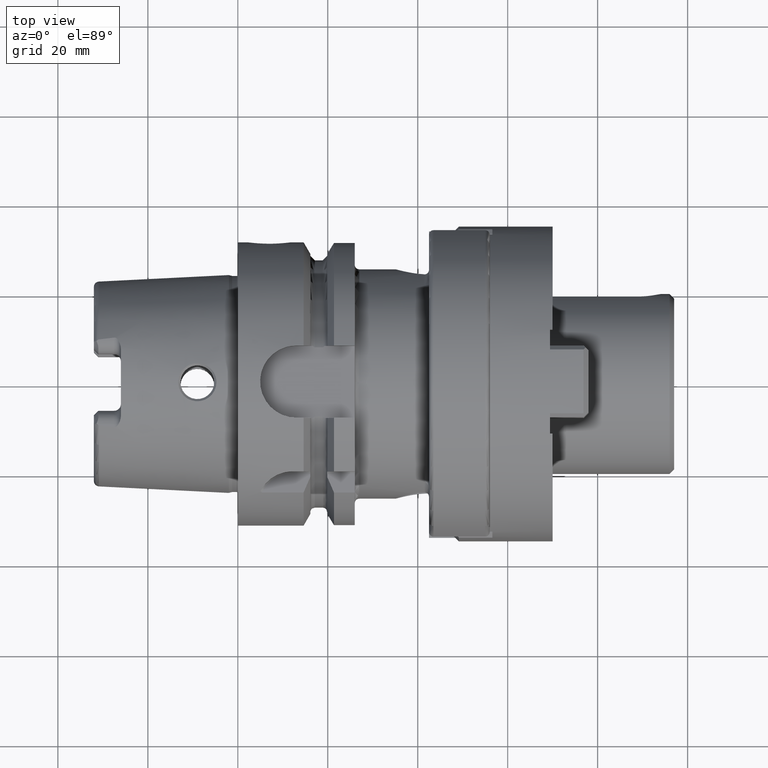
[diagram: clean part render]
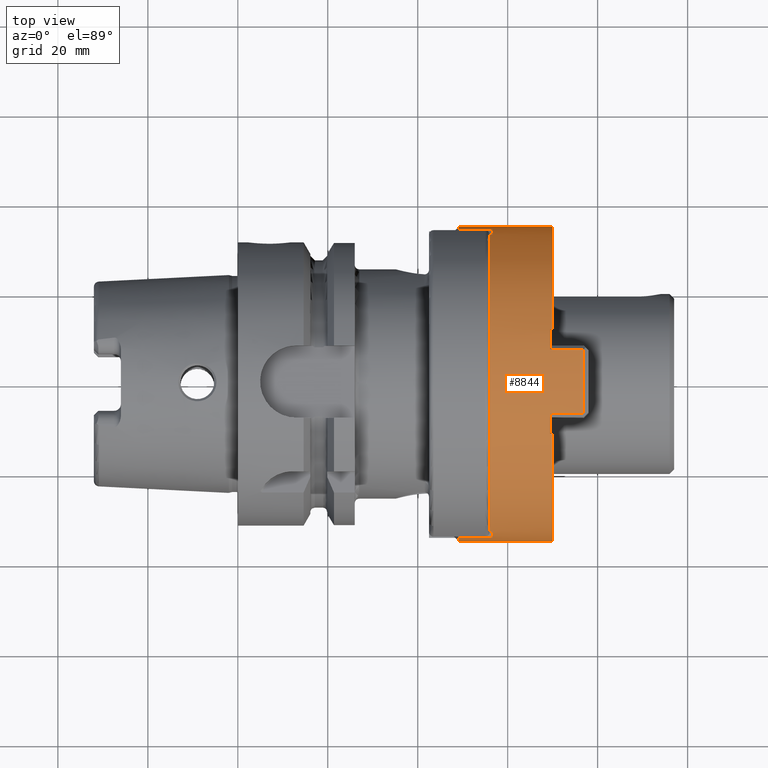
[diagram: same view with one face highlighted and labeled with its STEP entity id]
A machine part, top view. The second image highlights one B-rep face of the part: STEP entity #8844.
In plain terms, the highlighted cylindrical surface (partial cylindrical patch) has radius 35 mm, axis along (1, 0, 0).
Its self-contained STEP definition (entity closure, byte-faithful):
#7525=CARTESIAN_POINT('',(0.E0,-6.8625E0,0.E0));
#7526=DIRECTION('',(0.E0,-1.E0,0.E0));
#7527=DIRECTION('',(-1.E0,0.E0,0.E0));
#7528=AXIS2_PLACEMENT_3D('',#7525,#7526,#7527);
#7530=DIRECTION('',(0.E0,-1.E0,0.E0));
#7531=VECTOR('',#7530,7.4625E0);
#7532=CARTESIAN_POINT('',(-3.427322364207E1,6.E-1,-7.095501474926E0));
#7533=LINE('',#7532,#7531);
#7534=DIRECTION('',(0.E0,1.E0,0.E0));
#7535=VECTOR('',#7534,6.E-1);
#7536=CARTESIAN_POINT('',(-3.303145839575E1,0.E0,-1.15725E1));
#7537=LINE('',#7536,#7535);
#7538=CARTESIAN_POINT('',(0.E0,0.E0,0.E0));
#7539=DIRECTION('',(0.E0,-1.E0,0.E0));
#7540=DIRECTION('',(-9.437559541642E-1,0.E0,-3.306428571429E-1));
#7541=AXIS2_PLACEMENT_3D('',#7538,#7539,#7540);
#7543=DIRECTION('',(0.E0,1.E0,0.E0));
#7544=VECTOR('',#7543,6.E-1);
#7545=CARTESIAN_POINT('',(3.303145839575E1,0.E0,-1.15725E1));
#7546=LINE('',#7545,#7544);
#7547=DIRECTION('',(1.523441711512E-13,1.E0,1.344913385944E-14));
#7548=VECTOR('',#7547,7.462500000001E0);
#7549=CARTESIAN_POINT('',(3.427322364207E1,-6.862500000001E0,
-7.095501474926E0));
#7550=LINE('',#7549,#7548);
#7551=CARTESIAN_POINT('',(0.E0,-6.8625E0,0.E0));
#7552=DIRECTION('',(0.E0,-1.E0,0.E0));
#7553=DIRECTION('',(9.792349612020E-1,0.E0,-2.027286135693E-1));
#7554=AXIS2_PLACEMENT_3D('',#7551,#7552,#7553);
#7556=DIRECTION('',(6.740151343647E-13,1.E0,-9.015847419679E-13));
#7557=VECTOR('',#7556,2.086250000001E1);
#7558=CARTESIAN_POINT('',(3.499999999999E1,-6.862500000014E0,
1.881359794312E-11));
#7559=LINE('',#7558,#7557);
#7560=CARTESIAN_POINT('',(0.E0,1.4E1,0.E0));
#7561=DIRECTION('',(0.E0,1.E0,0.E0));
#7562=DIRECTION('',(1.E0,0.E0,0.E0));
#7563=AXIS2_PLACEMENT_3D('',#7560,#7561,#7562);
#7565=DIRECTION('',(0.E0,1.E0,-1.184237892934E-14));
#7566=VECTOR('',#7565,6.E-1);
#7567=CARTESIAN_POINT('',(1.15725E1,1.34E1,-3.303145839575E1));
#7568=LINE('',#7567,#7566);
#7569=DIRECTION('',(-1.517626545151E-9,-1.E0,7.330553846767E-9));
#7570=VECTOR('',#7569,7.462500111729E0);
#7571=CARTESIAN_POINT('',(7.095501486252E0,2.086250011173E1,-3.427322369677E1));
#7572=LINE('',#7571,#7570);
#7573=DIRECTION('',(1.712888658590E-9,9.999999999974E-1,-2.279250900050E-6));
#7574=VECTOR('',#7573,7.462482596044E0);
#7575=CARTESIAN_POINT('',(-7.095501474926E0,1.34E1,-3.427322364207E1));
#7576=LINE('',#7575,#7574);
#7577=DIRECTION('',(0.E0,1.E0,0.E0));
#7578=VECTOR('',#7577,6.E-1);
#7579=CARTESIAN_POINT('',(-1.15725E1,1.34E1,-3.303145839575E1));
#7580=LINE('',#7579,#7578);
#7581=CARTESIAN_POINT('',(0.E0,1.4E1,0.E0));
#7582=DIRECTION('',(0.E0,1.E0,0.E0));
#7583=DIRECTION('',(-3.306428571429E-1,0.E0,-9.437559541642E-1));
#7584=AXIS2_PLACEMENT_3D('',#7581,#7582,#7583);
#7653=CARTESIAN_POINT('',(0.E0,6.E-1,0.E0));
#7654=DIRECTION('',(0.E0,1.E0,0.E0));
#7655=DIRECTION('',(-9.437559541642E-1,0.E0,-3.306428571429E-1));
#7656=AXIS2_PLACEMENT_3D('',#7653,#7654,#7655);
#7658=CARTESIAN_POINT('',(0.E0,6.E-1,0.E0));
#7659=DIRECTION('',(0.E0,1.E0,0.E0));
#7660=DIRECTION('',(9.792349612020E-1,0.E0,-2.027286135693E-1));
#7661=AXIS2_PLACEMENT_3D('',#7658,#7659,#7660);
#7806=DIRECTION('',(-6.511960267333E-13,1.E0,1.003982736532E-12));
#7807=VECTOR('',#7806,2.086250000001E1);
#7808=CARTESIAN_POINT('',(-3.499999999999E1,-6.862500000014E0,
-2.094844735011E-11));
#7809=LINE('',#7808,#7807);
#7932=CARTESIAN_POINT('',(5.969510476645E-6,2.086249959727E1,
-2.559704486416E-5));
#7933=DIRECTION('',(0.E0,-1.E0,0.E0));
#7934=DIRECTION('',(-2.027289223029E-1,0.E0,-9.792348972856E-1));
#7935=AXIS2_PLACEMENT_3D('',#7932,#7933,#7934);
#8034=CARTESIAN_POINT('',(0.E0,1.34E1,0.E0));
#8035=DIRECTION('',(0.E0,-1.E0,0.E0));
#8036=DIRECTION('',(2.027286135693E-1,0.E0,-9.792349612020E-1));
#8037=AXIS2_PLACEMENT_3D('',#8034,#8035,#8036);
#8180=CARTESIAN_POINT('',(0.E0,1.34E1,0.E0));
#8181=DIRECTION('',(0.E0,-1.E0,0.E0));
#8182=DIRECTION('',(-3.306428571429E-1,0.E0,-9.437559541642E-1));
#8183=AXIS2_PLACEMENT_3D('',#8180,#8181,#8182);
#8464=CARTESIAN_POINT('',(3.5E1,1.4E1,0.E0));
#8465=CARTESIAN_POINT('',(1.15725E1,1.4E1,-3.303145839575E1));
#8466=VERTEX_POINT('',#8464);
#8467=VERTEX_POINT('',#8465);
#8468=CARTESIAN_POINT('',(-1.15725E1,1.4E1,-3.303145839575E1));
#8469=CARTESIAN_POINT('',(-3.5E1,1.4E1,0.E0));
#8470=VERTEX_POINT('',#8468);
#8471=VERTEX_POINT('',#8469);
#8496=CARTESIAN_POINT('',(1.15725E1,1.34E1,-3.303145839575E1));
#8497=VERTEX_POINT('',#8496);
#8498=CARTESIAN_POINT('',(-1.15725E1,1.34E1,-3.303145839575E1));
#8499=VERTEX_POINT('',#8498);
#8528=CARTESIAN_POINT('',(-3.303145839575E1,0.E0,-1.15725E1));
#8530=VERTEX_POINT('',#8528);
#8533=CARTESIAN_POINT('',(3.303145839575E1,0.E0,-1.15725E1));
#8535=VERTEX_POINT('',#8533);
#8536=CARTESIAN_POINT('',(-3.303145839575E1,6.E-1,-1.15725E1));
#8538=VERTEX_POINT('',#8536);
#8541=CARTESIAN_POINT('',(3.303145839575E1,6.E-1,-1.15725E1));
#8543=VERTEX_POINT('',#8541);
#8548=CARTESIAN_POINT('',(-7.095501133841E0,2.086249959727E1,
-3.427322199454E1));
#8549=CARTESIAN_POINT('',(7.095501624522E0,2.086249959727E1,-3.427322436466E1));
#8550=VERTEX_POINT('',#8548);
#8551=VERTEX_POINT('',#8549);
#8576=CARTESIAN_POINT('',(-7.095501474926E0,1.34E1,-3.427322364207E1));
#8577=VERTEX_POINT('',#8576);
#8586=CARTESIAN_POINT('',(7.095501474926E0,1.34E1,-3.427322364207E1));
#8587=VERTEX_POINT('',#8586);
#8647=CARTESIAN_POINT('',(-3.5E1,-6.8625E0,0.E0));
#8648=CARTESIAN_POINT('',(-3.427322364207E1,-6.8625E0,-7.095501474926E0));
#8649=VERTEX_POINT('',#8647);
#8650=VERTEX_POINT('',#8648);
#8651=CARTESIAN_POINT('',(-3.427322364207E1,6.E-1,-7.095501474926E0));
#8652=VERTEX_POINT('',#8651);
#8677=CARTESIAN_POINT('',(3.5E1,-6.8625E0,0.E0));
#8678=VERTEX_POINT('',#8677);
#8679=CARTESIAN_POINT('',(3.427322364207E1,-6.8625E0,-7.095501474926E0));
#8680=VERTEX_POINT('',#8679);
#8685=CARTESIAN_POINT('',(3.427322364207E1,6.E-1,-7.095501474926E0));
#8686=VERTEX_POINT('',#8685);
#8798=CARTESIAN_POINT('',(0.E0,-7.9625E0,0.E0));
#8799=DIRECTION('',(0.E0,1.E0,0.E0));
#8800=DIRECTION('',(1.E0,0.E0,0.E0));
#8801=AXIS2_PLACEMENT_3D('',#8798,#8799,#8800);
#8802=CYLINDRICAL_SURFACE('',#8801,3.5E1);
#8803=ORIENTED_EDGE('',*,*,#8783,.T.);
#8805=ORIENTED_EDGE('',*,*,#8804,.F.);
#8807=ORIENTED_EDGE('',*,*,#8806,.F.);
#8809=ORIENTED_EDGE('',*,*,#8808,.F.);
#8811=ORIENTED_EDGE('',*,*,#8810,.T.);
#8813=ORIENTED_EDGE('',*,*,#8812,.T.);
#8815=ORIENTED_EDGE('',*,*,#8814,.F.);
#8817=ORIENTED_EDGE('',*,*,#8816,.F.);
#8819=ORIENTED_EDGE('',*,*,#8818,.T.);
#8821=ORIENTED_EDGE('',*,*,#8820,.T.);
#8823=ORIENTED_EDGE('',*,*,#8822,.T.);
#8825=ORIENTED_EDGE('',*,*,#8824,.F.);
#8827=ORIENTED_EDGE('',*,*,#8826,.F.);
#8829=ORIENTED_EDGE('',*,*,#8828,.F.);
#8831=ORIENTED_EDGE('',*,*,#8830,.F.);
#8833=ORIENTED_EDGE('',*,*,#8832,.F.);
#8835=ORIENTED_EDGE('',*,*,#8834,.F.);
#8837=ORIENTED_EDGE('',*,*,#8836,.T.);
#8839=ORIENTED_EDGE('',*,*,#8838,.T.);
#8841=ORIENTED_EDGE('',*,*,#8840,.F.);
#8842=EDGE_LOOP('',(#8803,#8805,#8807,#8809,#8811,#8813,#8815,#8817,#8819,#8821,
#8823,#8825,#8827,#8829,#8831,#8833,#8835,#8837,#8839,#8841));
#8843=FACE_OUTER_BOUND('',#8842,.F.);
#8844=ADVANCED_FACE('',(#8843),#8802,.T.);
#7529=CIRCLE('',#7528,3.5E1);
#7542=CIRCLE('',#7541,3.5E1);
#7555=CIRCLE('',#7554,3.5E1);
#7564=CIRCLE('',#7563,3.5E1);
#7585=CIRCLE('',#7584,3.5E1);
#7657=CIRCLE('',#7656,3.5E1);
#7662=CIRCLE('',#7661,3.5E1);
#7936=CIRCLE('',#7935,3.499997446220E1);
#8038=CIRCLE('',#8037,3.5E1);
#8184=CIRCLE('',#8183,3.5E1);
#8783=EDGE_CURVE('',#8649,#8650,#7529,.T.);
#8804=EDGE_CURVE('',#8652,#8650,#7533,.T.);
#8806=EDGE_CURVE('',#8538,#8652,#7657,.T.);
#8808=EDGE_CURVE('',#8530,#8538,#7537,.T.);
#8810=EDGE_CURVE('',#8530,#8535,#7542,.T.);
#8812=EDGE_CURVE('',#8535,#8543,#7546,.T.);
#8814=EDGE_CURVE('',#8686,#8543,#7662,.T.);
#8816=EDGE_CURVE('',#8680,#8686,#7550,.T.);
#8818=EDGE_CURVE('',#8680,#8678,#7555,.T.);
#8820=EDGE_CURVE('',#8678,#8466,#7559,.T.);
#8822=EDGE_CURVE('',#8466,#8467,#7564,.T.);
#8824=EDGE_CURVE('',#8497,#8467,#7568,.T.);
#8826=EDGE_CURVE('',#8587,#8497,#8038,.T.);
#8828=EDGE_CURVE('',#8551,#8587,#7572,.T.);
#8830=EDGE_CURVE('',#8550,#8551,#7936,.T.);
#8832=EDGE_CURVE('',#8577,#8550,#7576,.T.);
#8834=EDGE_CURVE('',#8499,#8577,#8184,.T.);
#8836=EDGE_CURVE('',#8499,#8470,#7580,.T.);
#8838=EDGE_CURVE('',#8470,#8471,#7585,.T.);
#8840=EDGE_CURVE('',#8649,#8471,#7809,.T.);